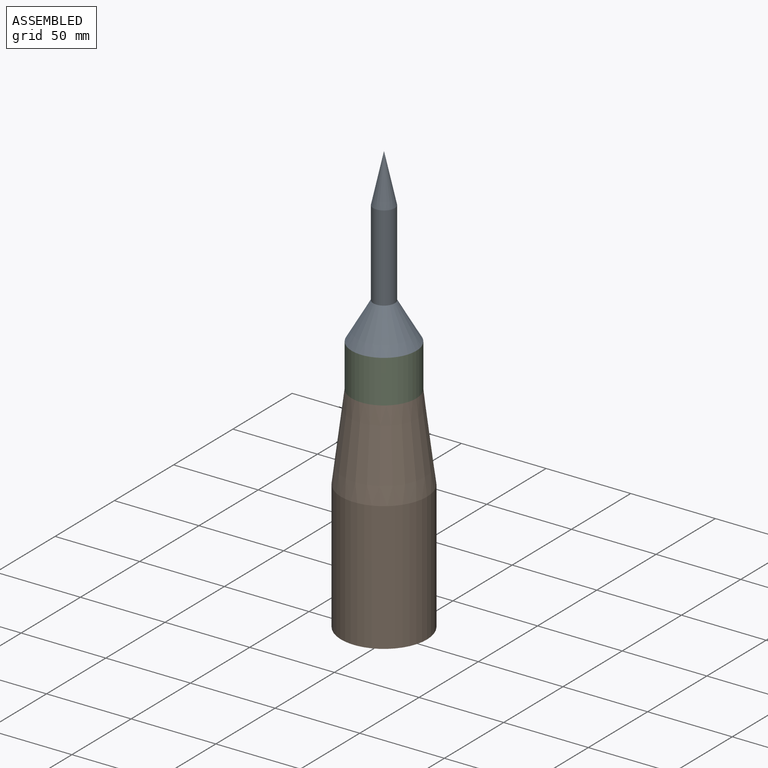
[diagram: assembled view]
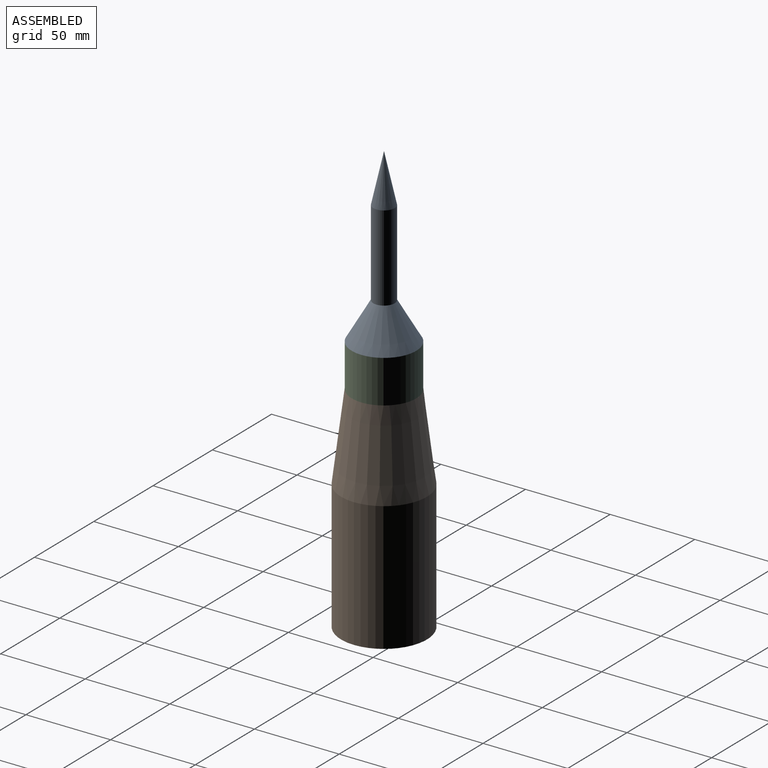
[diagram: assembled view, second angle]
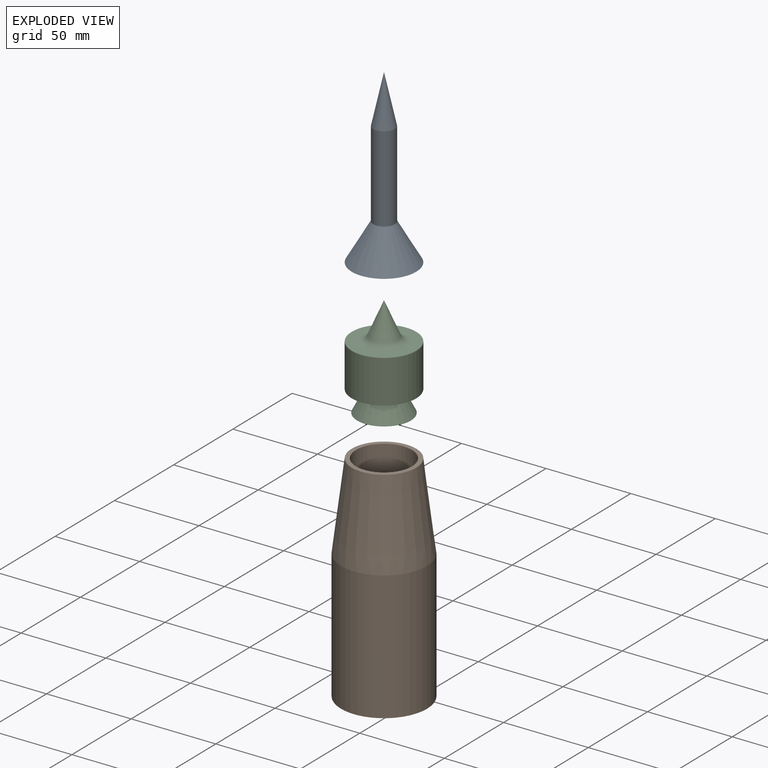
[diagram: exploded view]
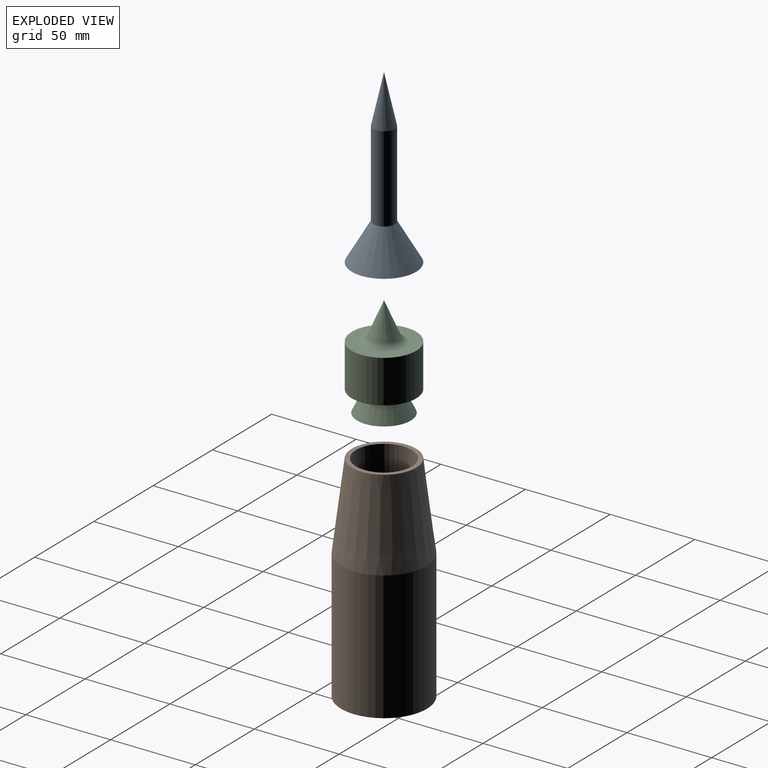
[diagram: exploded view, second angle]
ASSEMBLY  parts=3 mates=2
PART A: 5 faces, bbox 38.1x38.1x101.6 mm
  f0: cone r=0mm half-angle=23.4deg, axis (0,0,-1), area 717.3mm2, adj f1
  f1: plane 38.1x38.1mm, normal (0,0,-1), area 855.1mm2, adj f0,f2
  f2: cone r=19.05mm half-angle=30deg, axis (0,0,-1), area 2026.8mm2, adj f1,f3
  f3: cylinder r=6.35mm len=50.8mm, axis (0,0,1), area 2026.8mm2, adj f2,f4
  f4: cone r=6.35mm half-angle=12.4deg, axis (0,0,-1), area 588.4mm2, adj f3
PART B: 8 faces, bbox 50.8x50.8x127 mm
  f0: plane 44.45x44.45mm, normal (0,0,1), area 1551.8mm2, adj f1
  f1: cylinder r=22.23mm len=50.8mm, axis (0,0,1), area 7093.9mm2, adj f0,f2
  f2: plane 44.45x44.45mm, normal (0,0,-1), area 695.5mm2, adj f1,f3
  f3: cylinder r=16.51mm len=50.8mm, axis (0,0,1), area 5269.8mm2, adj f2,f6
  f4: cylinder r=25.4mm len=76.2mm, axis (0,0,1), area 12161mm2, adj f5,f7
  f5: plane 50.8x50.8mm, normal (0,0,-1), area 2026.8mm2, adj f4
  f6: plane 38.1x38.1mm, normal (0,0,1), area 283.8mm2, adj f3,f7
  f7: cone r=19.05mm half-angle=7.1deg, axis (0,0,-1), area 7149.1mm2, adj f4,f6
PART C: 7 faces, bbox 38.1x38.1x60.1 mm
  f0: cylinder r=19.05mm len=38.1mm, axis (0,0,-1), area 3040.2mm2, adj f1,f2
  f1: plane 38.1x38.1mm, normal (0,0,1), area 620.6mm2, adj f0,f4
  f2: plane 38.1x38.1mm, normal (0,0,-1), area 855.1mm2, adj f0,f6
  f3: cone r=0mm half-angle=23.4deg, axis (0,0,-1), area 530.9mm2, adj f4
  f4: torus R=12.86mm, axis (0,0,1), area 379.2mm2, adj f1,f3
  f5: plane 31.75x31.75mm, normal (0,0,-1), area 791.7mm2, adj f6
  f6: cone r=9.53mm half-angle=26.6deg, axis (0,0,-1), area 1133mm2, adj f2,f5
PLACE A t=(-9.88,-15.41,-9.89)mm
PLACE B t=(-9.88,-15.41,-86.09)mm
PLACE C t=(-9.88,-15.41,-35.29)mm
MATE cylindrical C.f3 <-> A.f2  axis (0,0,1) through (-9.88,-15.41,-6.83)mm
MATE fastened C.f0 <-> B.f7  axis (0,0,-1) through (-9.88,-15.41,-35.29)mm
